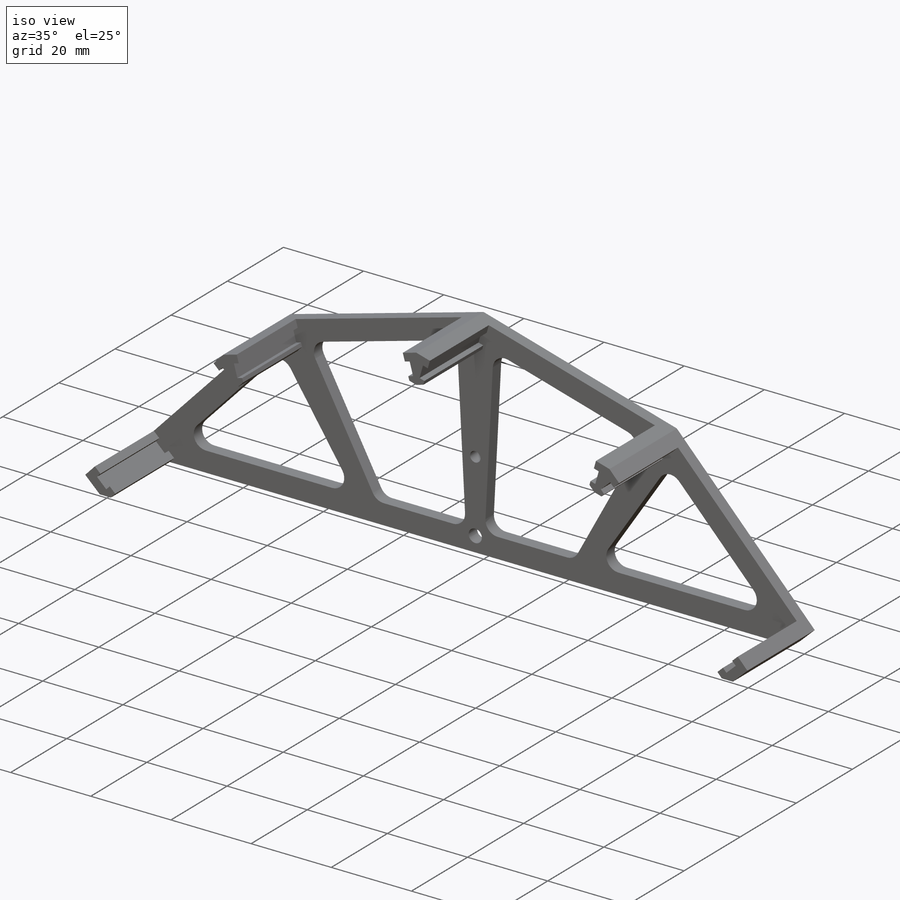
[diagram: iso view]
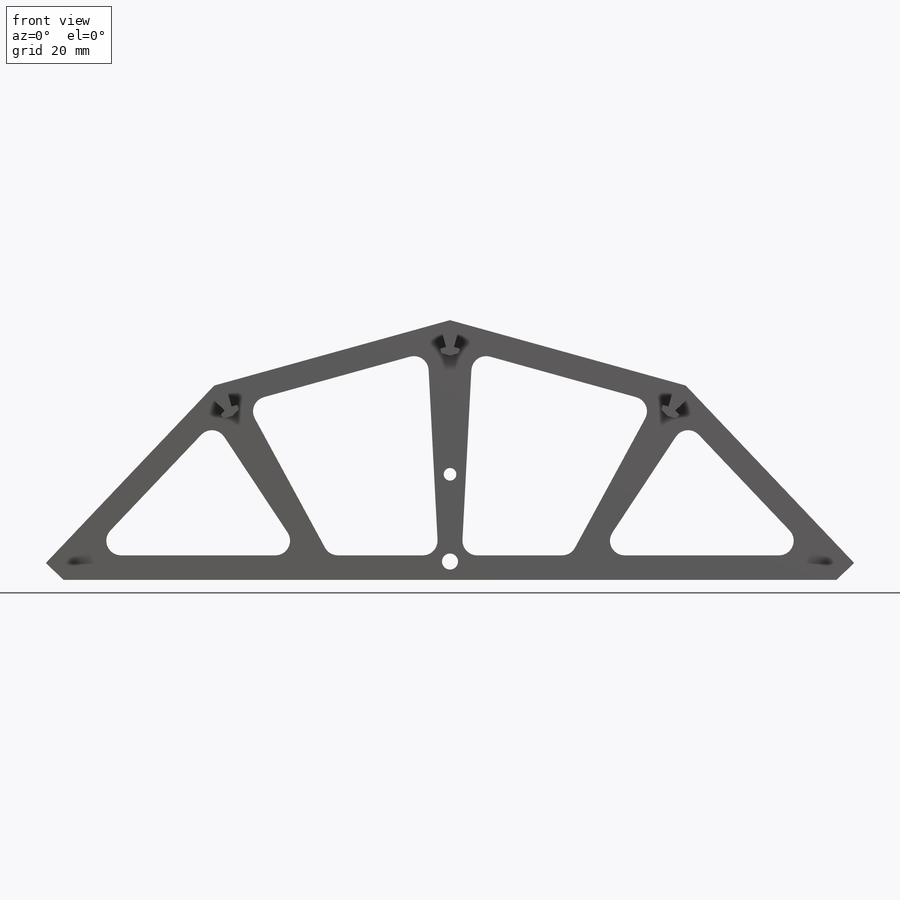
[diagram: front view]
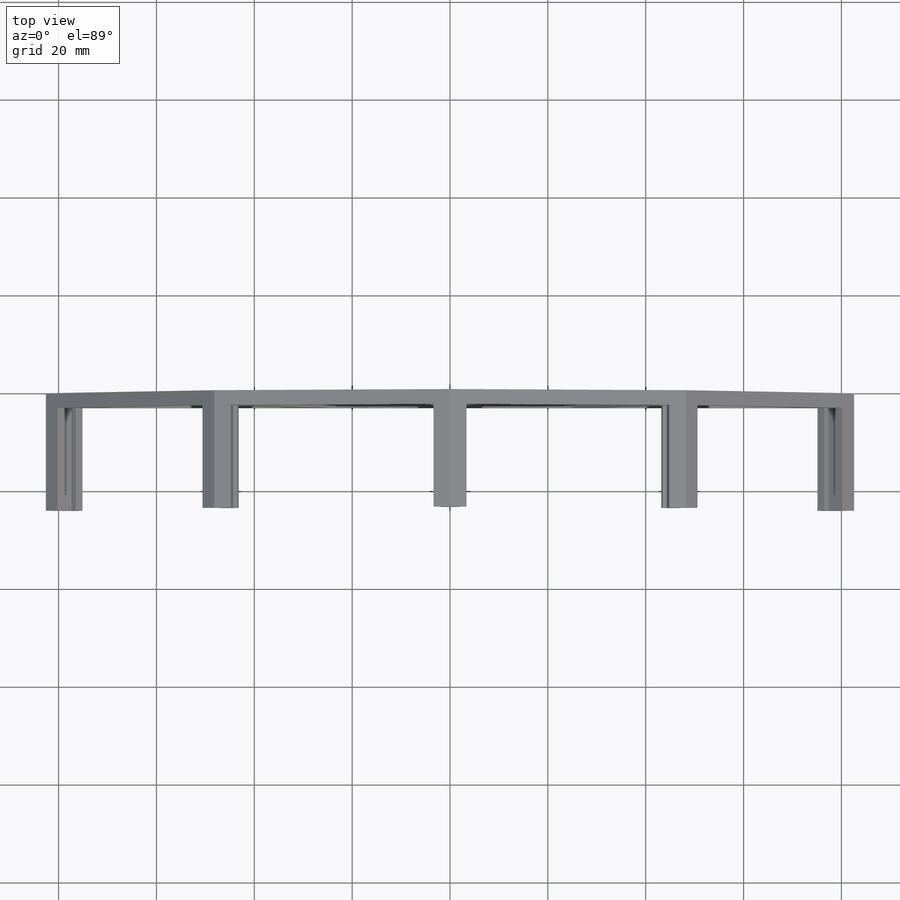
[diagram: top view]
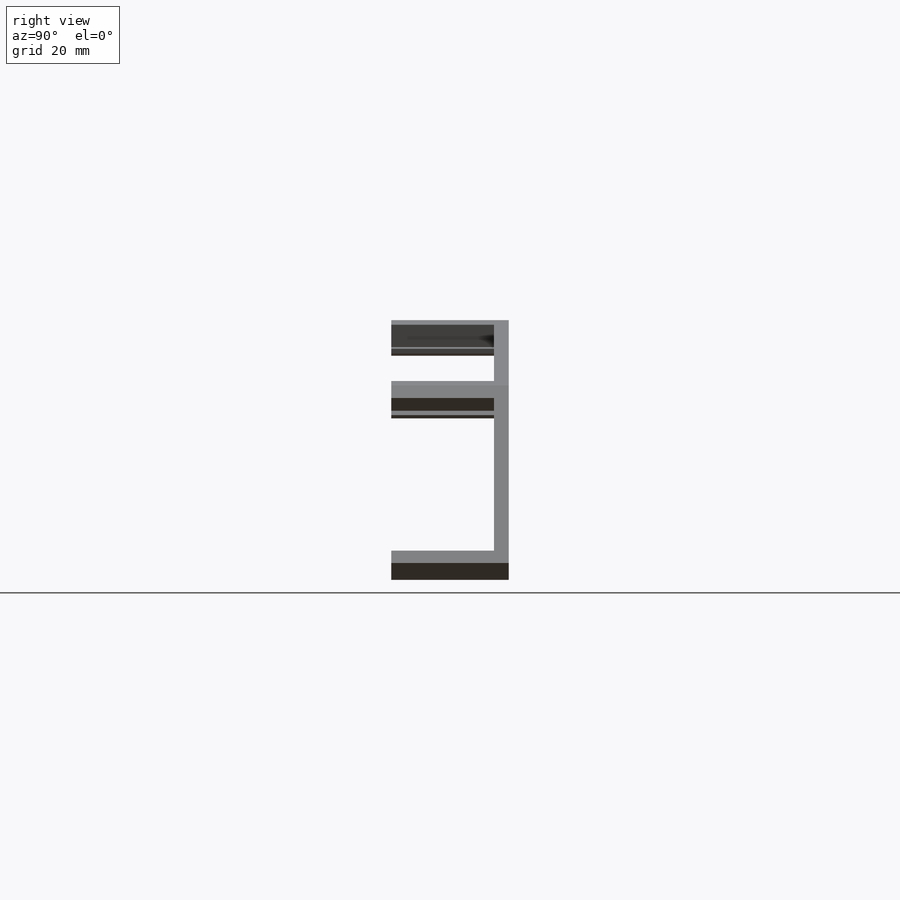
[diagram: right view]
SOLIDWORKS PART (.sldprt)
format: sldprt  version: not decoded by parser v0  size: 353,280 bytes
history: native  units: mm
features: sketch x4, extrude x2, cut_extrude x2, material x1 (+12 scaffold rows collapsed)
feature tree (21):
  scaffold x12  (default folders/planes/origin — collapsed)
  material  "Material <not specified>"
  sketch  "Sketch1"  dims[c1.D1=~59.660223mm c1.D2=~59.660223mm c2.D2=31.0deg c2.D3=~51.667268mm c3.D3=31.0deg c3.D1=~10.53717mm c3.D4=50.0mm c4.D1=40.0mm c4.D5=40.0mm c5.D1=5.0mm c5.D5=~159.395508mm]
  extrude  "Boss-Extrude1"  Depth=3mm
  sketch  "Sketch2"  dims[c1.D1=5.0mm c1.D2=22.75mm c1.D3=22.75mm c1.D4=22.75mm c2.D2=22.75mm c2.D3=1.75mm c2.D4=5.0mm c2.D5=5.0mm c2.D6=5.0mm c3.D5=5.0mm c3.D1=5.0mm c3.D4=5.0mm c4.D5=105.5deg c4.D1=7.0mm c4.D4=1.25mm c5.D5=~3.775706mm c5.D3=1.6mm]
  extrude  "Boss-Extrude2"  Depth=21mm
  sketch  "Sketch3"  dims[c1.D6=3.0mm c1.D7=3.0mm c1.D8=3.0mm c1.D1=5.0mm c1.D2=5.0mm c1.D3=5.0mm c1.D4=~87.275211mm c2.D4=~5.147787deg c3.D4=~93.549438mm c4.D4=2.5deg c4.D5=~93.549438mm c5.D5=2.5deg c5.D9=~93.549438mm c6.D9=3.0deg]
  cut_extrude  "Cut-Extrude1"  [1 undecoded]
  sketch  "Sketch5"
  cut_extrude  "Cut-Extrude2"  [1 undecoded]
decode coverage: 5 of 8 modeling features carry decoded parameters
note: ~ marks probable driven/reference dimensions
note: 2 parameter values undecoded
note: suppression state not decoded; provenance and decode notes live in map.json
